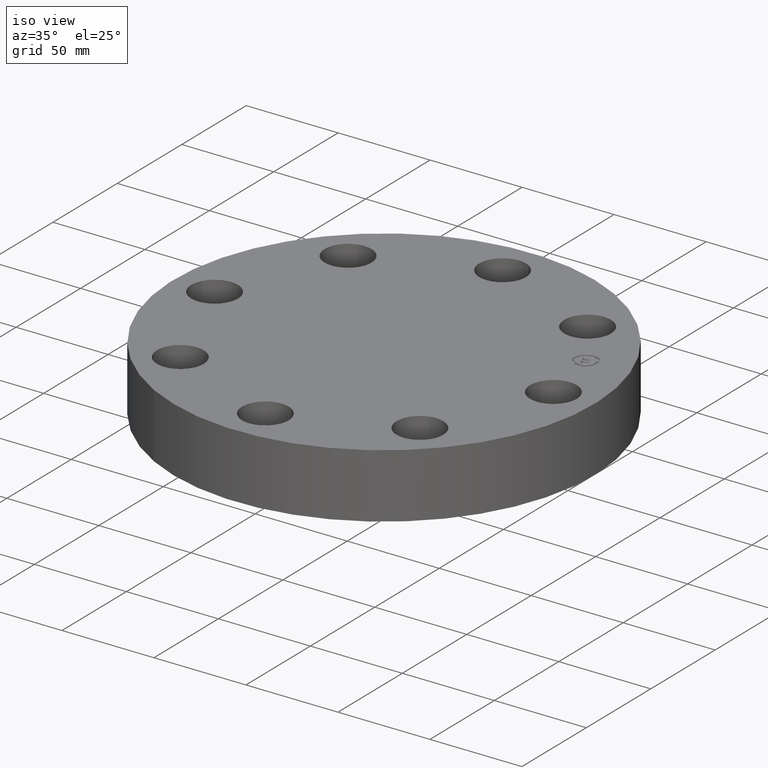
[diagram: clean part render]
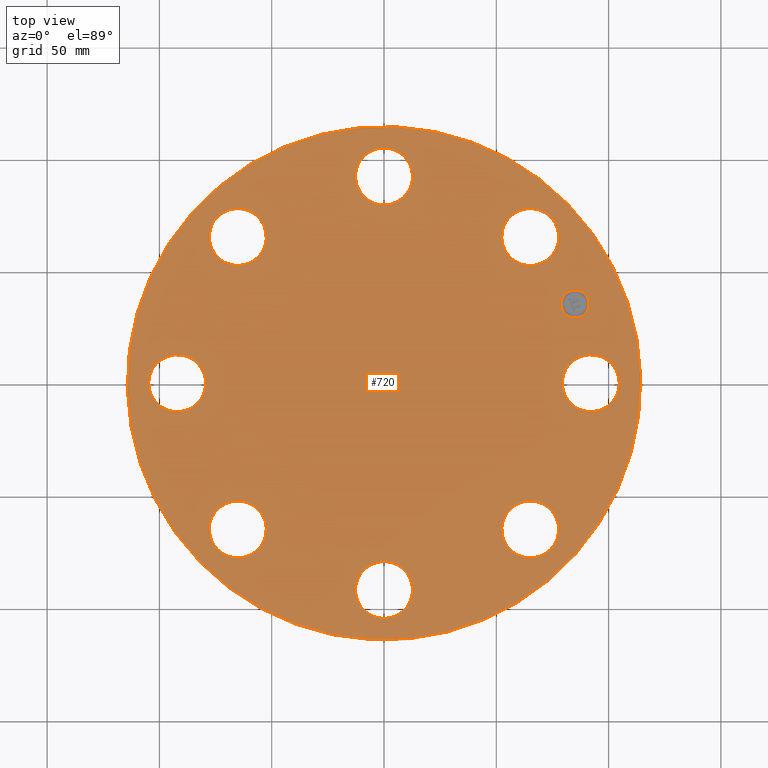
[diagram: tour spotlight — one face highlighted and labeled with its STEP entity id]
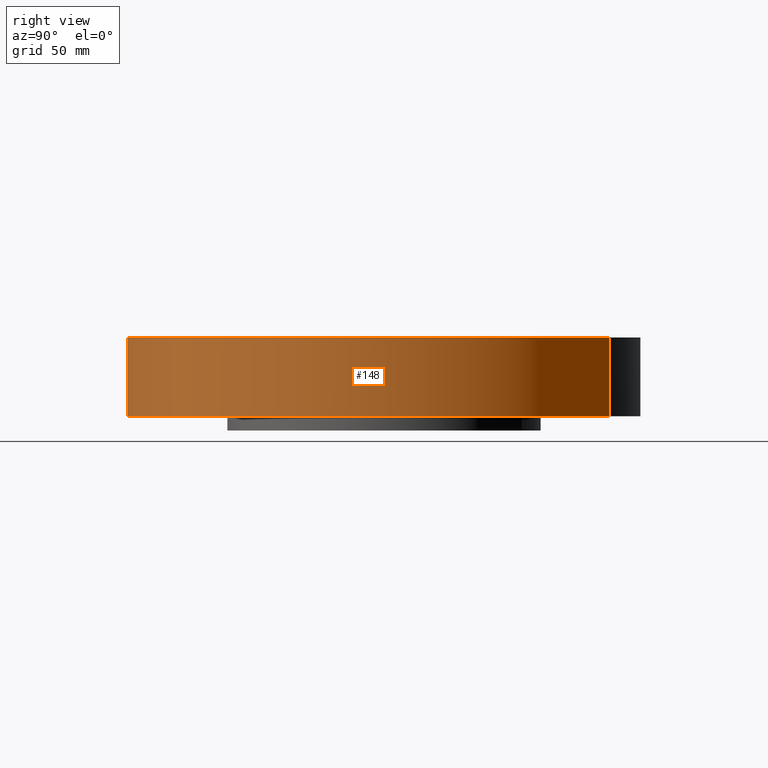
[diagram: tour spotlight — one face highlighted and labeled with its STEP entity id]
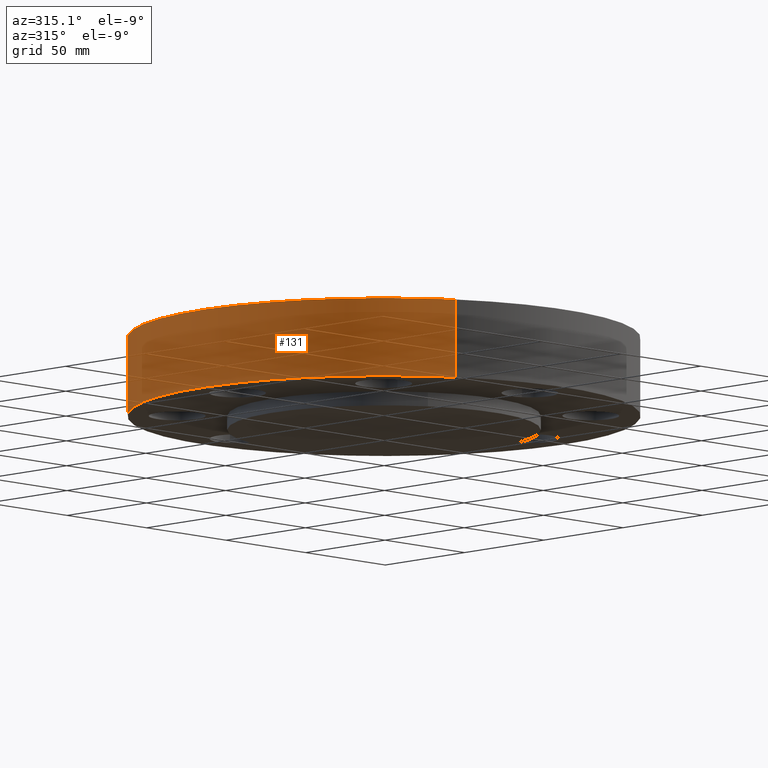
[diagram: tour spotlight — one face highlighted and labeled with its STEP entity id]
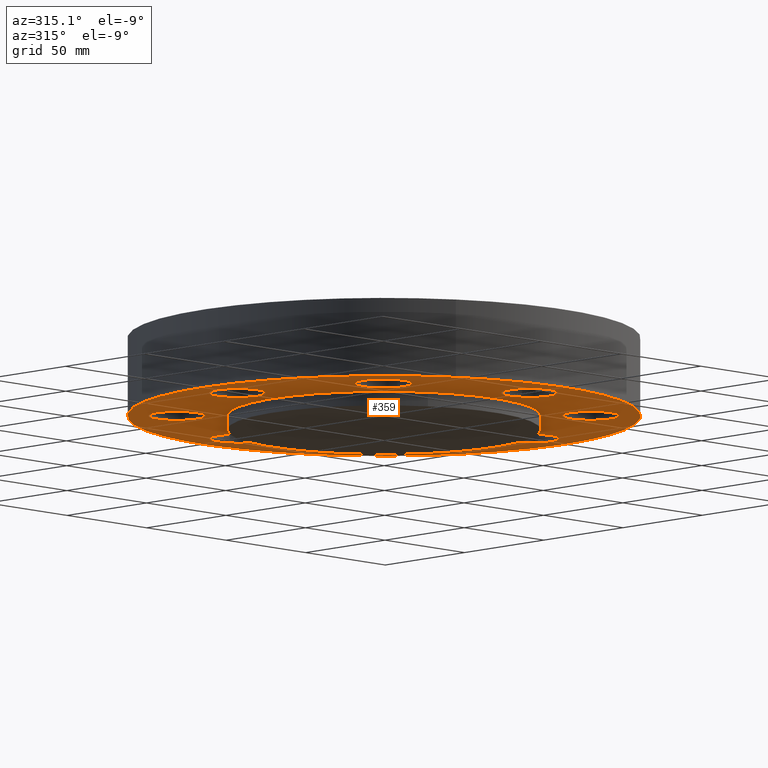
[diagram: tour spotlight — one face highlighted and labeled with its STEP entity id]
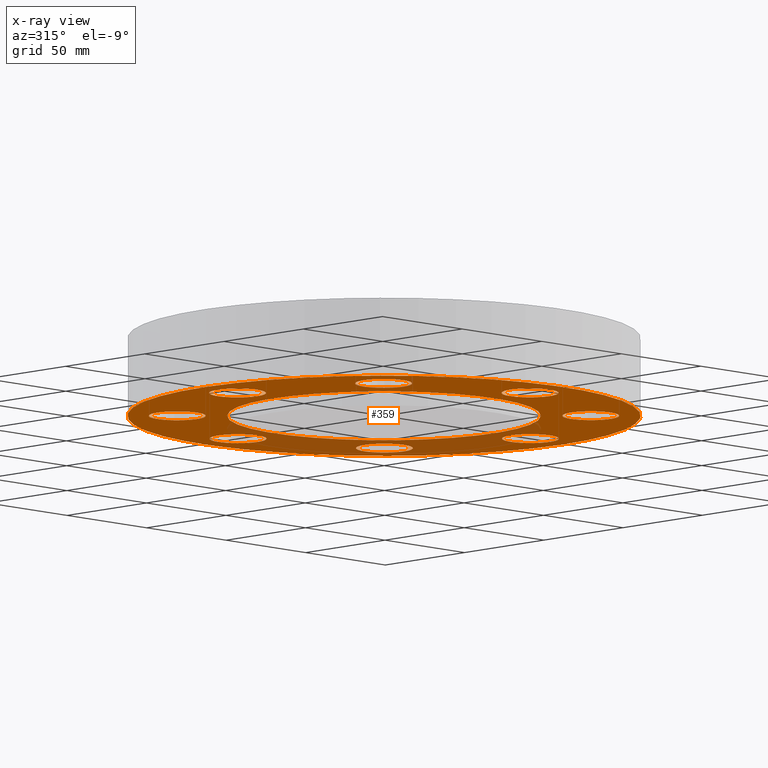
[diagram: x-ray of the same camera — body ghosted, this tour face saturated]
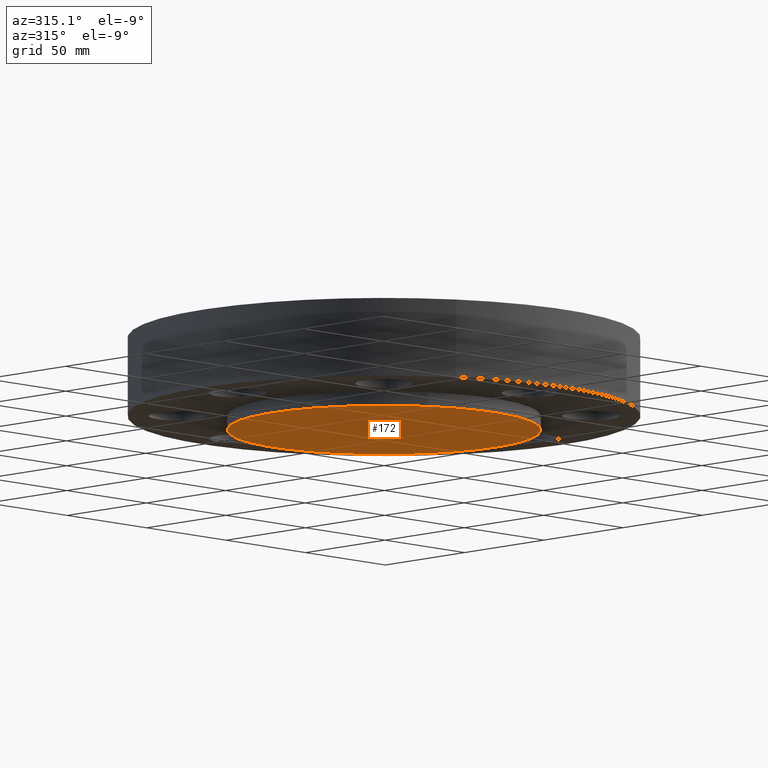
[diagram: tour spotlight — one face highlighted and labeled with its STEP entity id]
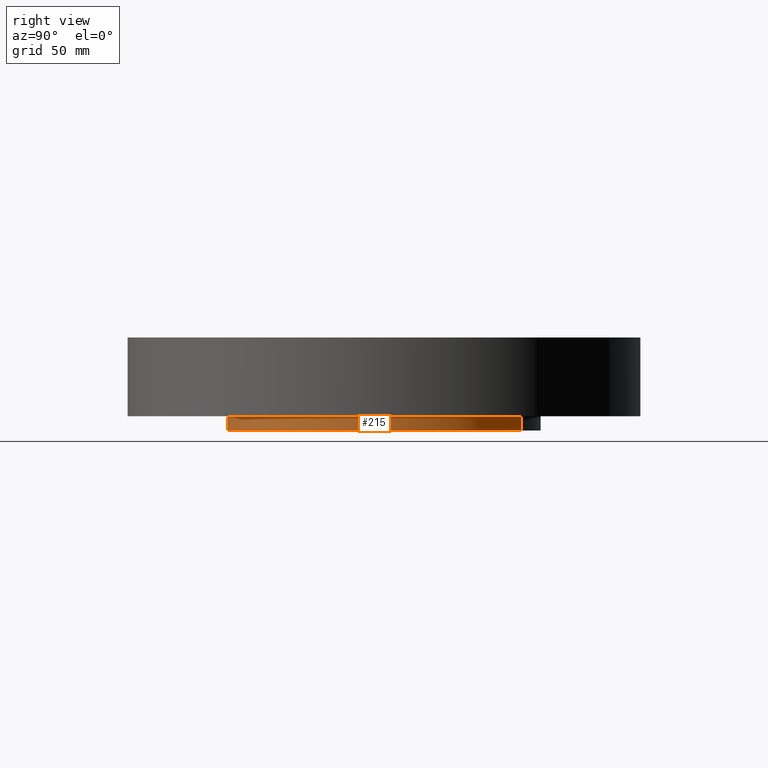
[diagram: tour spotlight — one face highlighted and labeled with its STEP entity id]
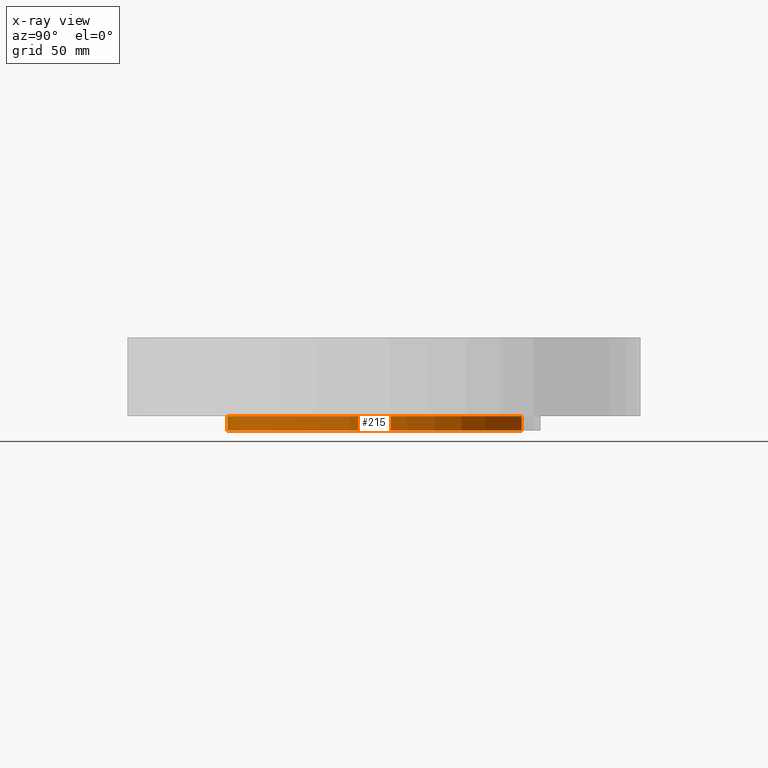
[diagram: x-ray of the same camera — body ghosted, this tour face saturated]
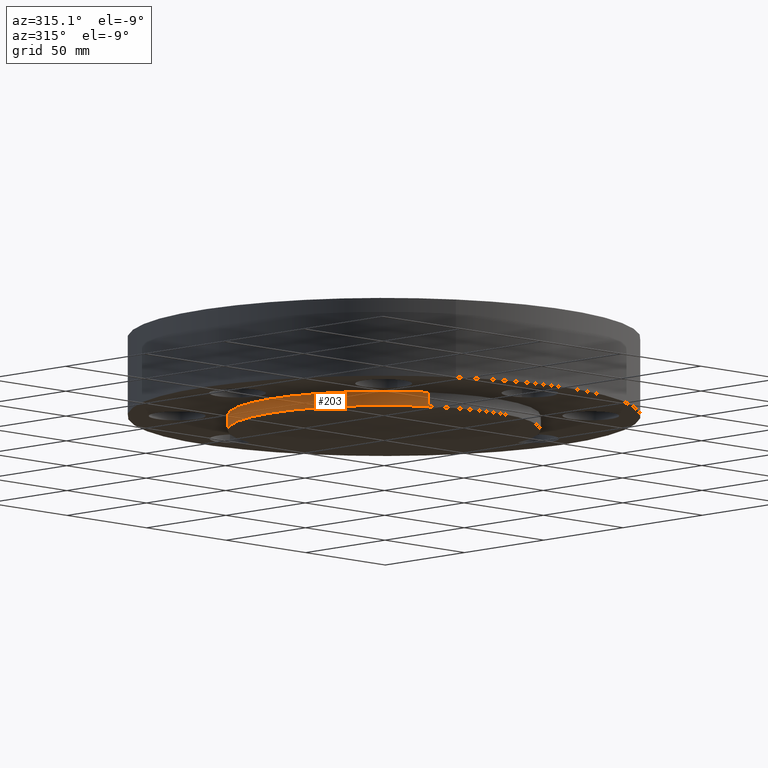
[diagram: tour spotlight — one face highlighted and labeled with its STEP entity id]
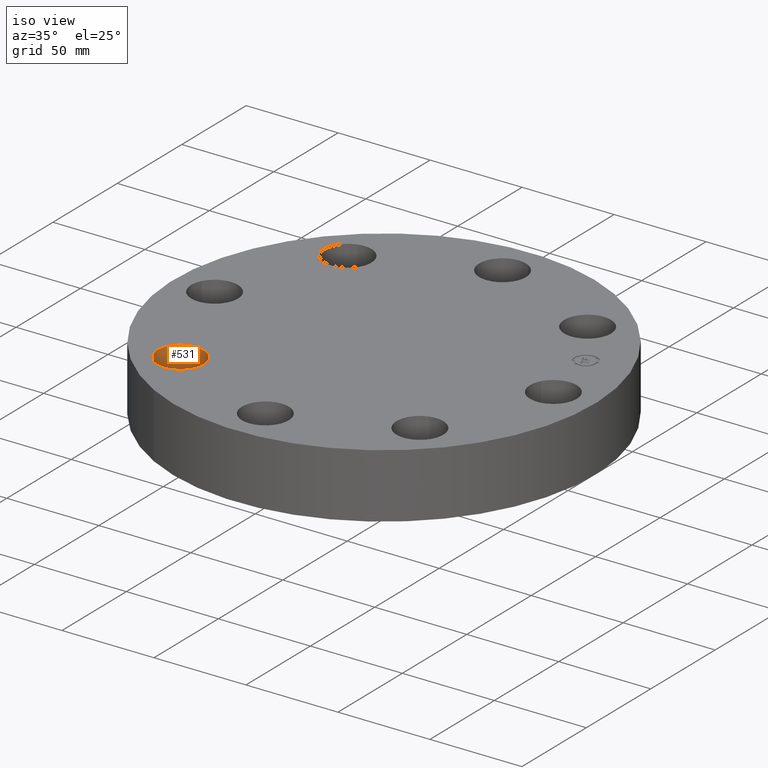
[diagram: tour spotlight — one face highlighted and labeled with its STEP entity id]
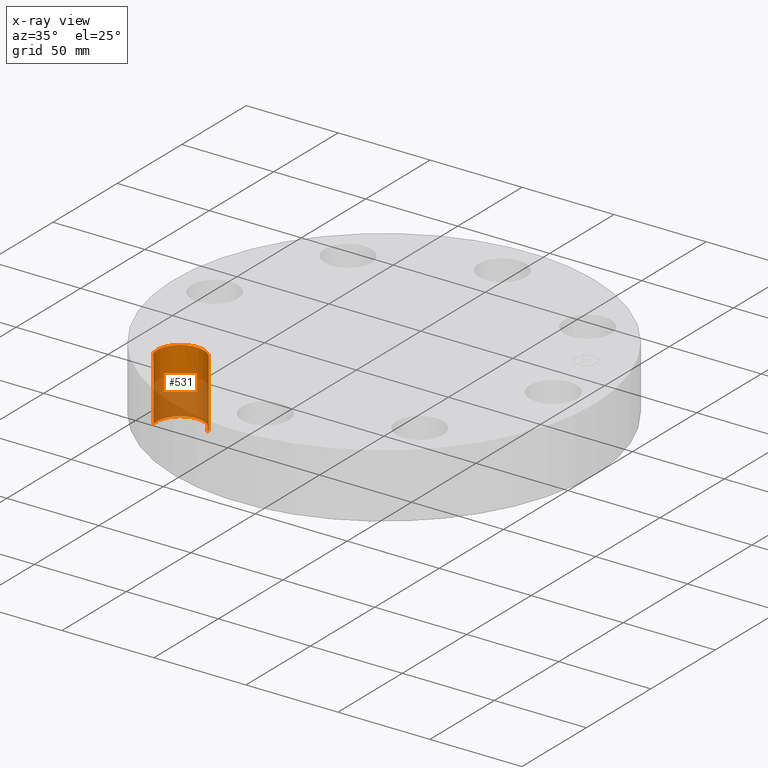
[diagram: x-ray of the same camera — body ghosted, this tour face saturated]
A machine part: a face-by-face anatomy tour. The part has 408 B-rep faces; the first image is the clean iso view, then the 8 largest visible faces are spotlighted one at a time (largest first), each with its STEP entity span.

Face 1 — top view, entity #720. In plain terms, the highlighted planar face has unit normal (0, 0, -1).
Definition (entity closure, byte-faithful):
#65=AXIS2_PLACEMENT_3D('Circle Axis2P3D',#63,#64,$) ;
#82=AXIS2_PLACEMENT_3D('Circle Axis2P3D',#80,#81,$) ;
#115=AXIS2_PLACEMENT_3D('Circle Axis2P3D',#113,#114,$) ;
#139=AXIS2_PLACEMENT_3D('Circle Axis2P3D',#137,#138,$) ;
#381=AXIS2_PLACEMENT_3D('Circle Axis2P3D',#379,#380,$) ;
#393=AXIS2_PLACEMENT_3D('Circle Axis2P3D',#391,#392,$) ;
#424=AXIS2_PLACEMENT_3D('Circle Axis2P3D',#422,#423,$) ;
#436=AXIS2_PLACEMENT_3D('Circle Axis2P3D',#434,#435,$) ;
#467=AXIS2_PLACEMENT_3D('Circle Axis2P3D',#465,#466,$) ;
#479=AXIS2_PLACEMENT_3D('Circle Axis2P3D',#477,#478,$) ;
#510=AXIS2_PLACEMENT_3D('Circle Axis2P3D',#508,#509,$) ;
#522=AXIS2_PLACEMENT_3D('Circle Axis2P3D',#520,#521,$) ;
#553=AXIS2_PLACEMENT_3D('Circle Axis2P3D',#551,#552,$) ;
#565=AXIS2_PLACEMENT_3D('Circle Axis2P3D',#563,#564,$) ;
#596=AXIS2_PLACEMENT_3D('Circle Axis2P3D',#594,#595,$) ;
#608=AXIS2_PLACEMENT_3D('Circle Axis2P3D',#606,#607,$) ;
#639=AXIS2_PLACEMENT_3D('Circle Axis2P3D',#637,#638,$) ;
#651=AXIS2_PLACEMENT_3D('Circle Axis2P3D',#649,#650,$) ;
#664=AXIS2_PLACEMENT_3D('Plane Axis2P3D',#661,#662,#663) ;
#704=AXIS2_PLACEMENT_3D('Circle Axis2P3D',#702,#703,$) ;
#713=AXIS2_PLACEMENT_3D('Circle Axis2P3D',#711,#712,$) ;
#46=CARTESIAN_POINT('Vertex',(3.18620871907,0.239712769303,1.38000000001)) ;
#60=CARTESIAN_POINT('Vertex',(4.06379128096,-0.239712769303,1.38000000001)) ;
#63=CARTESIAN_POINT('Axis2P3D Location',(3.62500000001,0.,1.38000000001)) ;
#80=CARTESIAN_POINT('Axis2P3D Location',(3.62500000001,0.,1.38000000001)) ;
#110=CARTESIAN_POINT('Vertex',(-2.15741492373,-3.94912152852,1.38000000001)) ;
#113=CARTESIAN_POINT('Axis2P3D Location',(0.,0.,1.38000000001)) ;
#117=CARTESIAN_POINT('Vertex',(2.15741492373,3.94912152852,1.38000000001)) ;
#137=CARTESIAN_POINT('Axis2P3D Location',(0.,0.,1.38000000001)) ;
#369=CARTESIAN_POINT('Vertex',(-2.42249231624,2.08348726682,1.38000000001)) ;
#376=CARTESIAN_POINT('Vertex',(-2.70403184738,3.04303689681,1.38000000001)) ;
#379=CARTESIAN_POINT('Axis2P3D Location',(-2.56326208181,2.56326208181,1.38000000001)) ;
#391=CARTESIAN_POINT('Axis2P3D Location',(-2.56326208181,2.56326208181,1.38000000001)) ;
#412=CARTESIAN_POINT('Vertex',(0.239712769303,-3.18620871907,1.38000000001)) ;
#419=CARTESIAN_POINT('Vertex',(-0.239712769303,-4.06379128096,1.38000000001)) ;
#422=CARTESIAN_POINT('Axis2P3D Location',(-3.37515236756E-016,-3.62500000001,1.38000000001)) ;
#434=CARTESIAN_POINT('Axis2P3D Location',(-3.37515236756E-016,-3.62500000001,1.38000000001)) ;
#455=CARTESIAN_POINT('Vertex',(-0.239712769303,3.18620871907,1.38000000001)) ;
#462=CARTESIAN_POINT('Vertex',(0.239712769303,4.06379128096,1.38000000001)) ;
#465=CARTESIAN_POINT('Axis2P3D Location',(-6.65901697039E-016,3.62500000001,1.38000000001)) ;
#477=CARTESIAN_POINT('Axis2P3D Location',(-6.65901697039E-016,3.62500000001,1.38000000001)) ;
#498=CARTESIAN_POINT('Vertex',(-2.08348726682,-2.42249231624,1.38000000001)) ;
#505=CARTESIAN_POINT('Vertex',(-3.04303689681,-2.70403184738,1.38000000001)) ;
#508=CARTESIAN_POINT('Axis2P3D Location',(-2.56326208181,-2.56326208181,1.38000000001)) ;
#520=CARTESIAN_POINT('Axis2P3D Location',(-2.56326208181,-2.56326208181,1.38000000001)) ;
#541=CARTESIAN_POINT('Vertex',(2.08348726682,2.42249231624,1.38000000001)) ;
#548=CARTESIAN_POINT('Vertex',(3.04303689681,2.70403184738,1.38000000001)) ;
#551=CARTESIAN_POINT('Axis2P3D Location',(2.56326208181,2.56326208181,1.38000000001)) ;
#563=CARTESIAN_POINT('Axis2P3D Location',(2.56326208181,2.56326208181,1.38000000001)) ;
#584=CARTESIAN_POINT('Vertex',(-3.18620871907,-0.239712769303,1.38000000001)) ;
#591=CARTESIAN_POINT('Vertex',(-4.06379128096,0.239712769303,1.38000000001)) ;
#594=CARTESIAN_POINT('Axis2P3D Location',(-3.62500000001,-4.43934464693E-016,1.38000000001)) ;
#606=CARTESIAN_POINT('Axis2P3D Location',(-3.62500000001,-4.43934464693E-016,1.38000000001)) ;
#627=CARTESIAN_POINT('Vertex',(2.42249231624,-2.08348726682,1.38000000001)) ;
#634=CARTESIAN_POINT('Vertex',(2.70403184738,-3.04303689681,1.38000000001)) ;
#637=CARTESIAN_POINT('Axis2P3D Location',(2.56326208181,-2.56326208181,1.38000000001)) ;
#649=CARTESIAN_POINT('Axis2P3D Location',(2.56326208181,-2.56326208181,1.38000000001)) ;
#661=CARTESIAN_POINT('Axis2P3D Location',(0.,4.50000000002,1.38000000001)) ;
#702=CARTESIAN_POINT('Axis2P3D Location',(3.34906330537,1.38722744233,1.38000000001)) ;
#706=CARTESIAN_POINT('Vertex',(3.25434915586,1.61588762663,1.38000000001)) ;
#708=CARTESIAN_POINT('Vertex',(3.44377745488,1.15856725803,1.38000000001)) ;
#711=CARTESIAN_POINT('Axis2P3D Location',(3.34906330537,1.38722744233,1.38000000001)) ;
#64=DIRECTION('Axis2P3D Direction',(0.,-0.,-0.0393700787402)) ;
#81=DIRECTION('Axis2P3D Direction',(0.,-0.,-0.0393700787402)) ;
#114=DIRECTION('Axis2P3D Direction',(0.,0.,-0.0393700787402)) ;
#138=DIRECTION('Axis2P3D Direction',(0.,0.,-0.0393700787402)) ;
#380=DIRECTION('Axis2P3D Direction',(0.,0.,-0.0393700787402)) ;
#392=DIRECTION('Axis2P3D Direction',(0.,0.,-0.0393700787402)) ;
#423=DIRECTION('Axis2P3D Direction',(0.,-0.,-0.0393700787402)) ;
#435=DIRECTION('Axis2P3D Direction',(0.,-0.,-0.0393700787402)) ;
#466=DIRECTION('Axis2P3D Direction',(0.,0.,-0.0393700787402)) ;
#478=DIRECTION('Axis2P3D Direction',(0.,0.,-0.0393700787402)) ;
#509=DIRECTION('Axis2P3D Direction',(-0.,0.,-0.0393700787402)) ;
#521=DIRECTION('Axis2P3D Direction',(-0.,0.,-0.0393700787402)) ;
#552=DIRECTION('Axis2P3D Direction',(0.,0.,-0.0393700787402)) ;
#564=DIRECTION('Axis2P3D Direction',(0.,0.,-0.0393700787402)) ;
#595=DIRECTION('Axis2P3D Direction',(-0.,0.,-0.0393700787402)) ;
#607=DIRECTION('Axis2P3D Direction',(-0.,0.,-0.0393700787402)) ;
#638=DIRECTION('Axis2P3D Direction',(0.,-0.,-0.0393700787402)) ;
#650=DIRECTION('Axis2P3D Direction',(0.,-0.,-0.0393700787402)) ;
#662=DIRECTION('Axis2P3D Direction',(0.,0.,-0.0393700787402)) ;
#663=DIRECTION('Axis2P3D XDirection',(0.0393700787402,0.,0.)) ;
#703=DIRECTION('Axis2P3D Direction',(0.,0.,-0.0393700787402)) ;
#712=DIRECTION('Axis2P3D Direction',(0.,0.,-0.0393700787402)) ;
#667=ORIENTED_EDGE('',*,*,#141,.F.) ;
#668=ORIENTED_EDGE('',*,*,#119,.F.) ;
#671=ORIENTED_EDGE('',*,*,#67,.T.) ;
#672=ORIENTED_EDGE('',*,*,#84,.T.) ;
#675=ORIENTED_EDGE('',*,*,#653,.T.) ;
#676=ORIENTED_EDGE('',*,*,#641,.T.) ;
#679=ORIENTED_EDGE('',*,*,#438,.T.) ;
#680=ORIENTED_EDGE('',*,*,#426,.T.) ;
#683=ORIENTED_EDGE('',*,*,#524,.T.) ;
#684=ORIENTED_EDGE('',*,*,#512,.T.) ;
#687=ORIENTED_EDGE('',*,*,#610,.T.) ;
#688=ORIENTED_EDGE('',*,*,#598,.T.) ;
#691=ORIENTED_EDGE('',*,*,#395,.T.) ;
#692=ORIENTED_EDGE('',*,*,#383,.T.) ;
#695=ORIENTED_EDGE('',*,*,#481,.T.) ;
#696=ORIENTED_EDGE('',*,*,#469,.T.) ;
#699=ORIENTED_EDGE('',*,*,#567,.T.) ;
#700=ORIENTED_EDGE('',*,*,#555,.T.) ;
#717=ORIENTED_EDGE('',*,*,#710,.T.) ;
#718=ORIENTED_EDGE('',*,*,#715,.T.) ;
#673=FACE_BOUND('',#670,.T.) ;
#677=FACE_BOUND('',#674,.T.) ;
#681=FACE_BOUND('',#678,.T.) ;
#685=FACE_BOUND('',#682,.T.) ;
#689=FACE_BOUND('',#686,.T.) ;
#693=FACE_BOUND('',#690,.T.) ;
#697=FACE_BOUND('',#694,.T.) ;
#701=FACE_BOUND('',#698,.T.) ;
#719=FACE_BOUND('',#716,.T.) ;
#720=ADVANCED_FACE('PartBody',(#669,#673,#677,#681,#685,#689,#693,#697,#701,#719),#665,.F.) ;
#66=CIRCLE('generated circle',#65,0.500000000002) ;
#83=CIRCLE('generated circle',#82,0.500000000002) ;
#116=CIRCLE('generated circle',#115,4.50000000002) ;
#140=CIRCLE('generated circle',#139,4.50000000002) ;
#382=CIRCLE('generated circle',#381,0.500000000002) ;
#394=CIRCLE('generated circle',#393,0.500000000002) ;
#425=CIRCLE('generated circle',#424,0.500000000002) ;
#437=CIRCLE('generated circle',#436,0.500000000002) ;
#468=CIRCLE('generated circle',#467,0.500000000002) ;
#480=CIRCLE('generated circle',#479,0.500000000002) ;
#511=CIRCLE('generated circle',#510,0.500000000002) ;
#523=CIRCLE('generated circle',#522,0.500000000002) ;
#554=CIRCLE('generated circle',#553,0.500000000002) ;
#566=CIRCLE('generated circle',#565,0.500000000002) ;
#597=CIRCLE('generated circle',#596,0.500000000002) ;
#609=CIRCLE('generated circle',#608,0.500000000002) ;
#640=CIRCLE('generated circle',#639,0.500000000002) ;
#652=CIRCLE('generated circle',#651,0.500000000002) ;
#705=CIRCLE('generated circle',#704,0.247500000001) ;
#714=CIRCLE('generated circle',#713,0.247500000001) ;
#67=EDGE_CURVE('',#47,#61,#66,.T.) ;
#84=EDGE_CURVE('',#61,#47,#83,.T.) ;
#119=EDGE_CURVE('',#111,#118,#116,.T.) ;
#141=EDGE_CURVE('',#118,#111,#140,.T.) ;
#383=EDGE_CURVE('',#370,#377,#382,.T.) ;
#395=EDGE_CURVE('',#377,#370,#394,.T.) ;
#426=EDGE_CURVE('',#413,#420,#425,.T.) ;
#438=EDGE_CURVE('',#420,#413,#437,.T.) ;
#469=EDGE_CURVE('',#456,#463,#468,.T.) ;
#481=EDGE_CURVE('',#463,#456,#480,.T.) ;
#512=EDGE_CURVE('',#499,#506,#511,.T.) ;
#524=EDGE_CURVE('',#506,#499,#523,.T.) ;
#555=EDGE_CURVE('',#542,#549,#554,.T.) ;
#567=EDGE_CURVE('',#549,#542,#566,.T.) ;
#598=EDGE_CURVE('',#585,#592,#597,.T.) ;
#610=EDGE_CURVE('',#592,#585,#609,.T.) ;
#641=EDGE_CURVE('',#628,#635,#640,.T.) ;
#653=EDGE_CURVE('',#635,#628,#652,.T.) ;
#710=EDGE_CURVE('',#707,#709,#705,.T.) ;
#715=EDGE_CURVE('',#709,#707,#714,.T.) ;
#666=EDGE_LOOP('',(#667,#668)) ;
#670=EDGE_LOOP('',(#671,#672)) ;
#674=EDGE_LOOP('',(#675,#676)) ;
#678=EDGE_LOOP('',(#679,#680)) ;
#682=EDGE_LOOP('',(#683,#684)) ;
#686=EDGE_LOOP('',(#687,#688)) ;
#690=EDGE_LOOP('',(#691,#692)) ;
#694=EDGE_LOOP('',(#695,#696)) ;
#698=EDGE_LOOP('',(#699,#700)) ;
#716=EDGE_LOOP('',(#717,#718)) ;
#669=FACE_OUTER_BOUND('',#666,.T.) ;
#665=PLANE('',#664) ;
#47=VERTEX_POINT('',#46) ;
#61=VERTEX_POINT('',#60) ;
#111=VERTEX_POINT('',#110) ;
#118=VERTEX_POINT('',#117) ;
#370=VERTEX_POINT('',#369) ;
#377=VERTEX_POINT('',#376) ;
#413=VERTEX_POINT('',#412) ;
#420=VERTEX_POINT('',#419) ;
#456=VERTEX_POINT('',#455) ;
#463=VERTEX_POINT('',#462) ;
#499=VERTEX_POINT('',#498) ;
#506=VERTEX_POINT('',#505) ;
#542=VERTEX_POINT('',#541) ;
#549=VERTEX_POINT('',#548) ;
#585=VERTEX_POINT('',#584) ;
#592=VERTEX_POINT('',#591) ;
#628=VERTEX_POINT('',#627) ;
#635=VERTEX_POINT('',#634) ;
#707=VERTEX_POINT('',#706) ;
#709=VERTEX_POINT('',#708) ;

Face 2 — right view, entity #148. In plain terms, the highlighted cylindrical surface (partial cylindrical patch) has radius 114.3 mm, axis along (0, 0, -1).
Definition (entity closure, byte-faithful):
#95=AXIS2_PLACEMENT_3D('Cylinder Axis2P3D',#92,#93,#94) ;
#134=AXIS2_PLACEMENT_3D('Circle Axis2P3D',#132,#133,$) ;
#139=AXIS2_PLACEMENT_3D('Circle Axis2P3D',#137,#138,$) ;
#92=CARTESIAN_POINT('Axis2P3D Location',(0.,0.,0.565000000002)) ;
#101=CARTESIAN_POINT('Vertex',(-2.15741492373,-3.94912152852,5.59482469102E-016)) ;
#103=CARTESIAN_POINT('Vertex',(2.15741492373,3.94912152852,5.59482469102E-016)) ;
#106=CARTESIAN_POINT('Line Origine',(-2.15741492373,-3.94912152852,0.690000000003)) ;
#110=CARTESIAN_POINT('Vertex',(-2.15741492373,-3.94912152852,1.38000000001)) ;
#117=CARTESIAN_POINT('Vertex',(2.15741492373,3.94912152852,1.38000000001)) ;
#120=CARTESIAN_POINT('Line Origine',(2.15741492373,3.94912152852,0.690000000003)) ;
#132=CARTESIAN_POINT('Axis2P3D Location',(0.,0.,5.59482469102E-016)) ;
#137=CARTESIAN_POINT('Axis2P3D Location',(0.,0.,1.38000000001)) ;
#93=DIRECTION('Axis2P3D Direction',(0.,0.,-0.0393700787402)) ;
#94=DIRECTION('Axis2P3D XDirection',(0.0188750212049,0.0345504945626,0.)) ;
#107=DIRECTION('Vector Direction',(0.,0.,-0.0393700787402)) ;
#121=DIRECTION('Vector Direction',(0.,0.,-0.0393700787402)) ;
#133=DIRECTION('Axis2P3D Direction',(0.,0.,-0.0393700787402)) ;
#138=DIRECTION('Axis2P3D Direction',(0.,0.,-0.0393700787402)) ;
#108=VECTOR('Line Direction',#107,0.0393700787402) ;
#122=VECTOR('Line Direction',#121,0.0393700787402) ;
#143=ORIENTED_EDGE('',*,*,#136,.F.) ;
#144=ORIENTED_EDGE('',*,*,#124,.T.) ;
#145=ORIENTED_EDGE('',*,*,#141,.T.) ;
#146=ORIENTED_EDGE('',*,*,#112,.F.) ;
#148=ADVANCED_FACE('PartBody',(#147),#96,.T.) ;
#135=CIRCLE('generated circle',#134,4.50000000002) ;
#140=CIRCLE('generated circle',#139,4.50000000002) ;
#96=CYLINDRICAL_SURFACE('generated cylinder',#95,4.50000000002) ;
#112=EDGE_CURVE('',#102,#111,#109,.F.) ;
#124=EDGE_CURVE('',#104,#118,#123,.F.) ;
#136=EDGE_CURVE('',#104,#102,#135,.T.) ;
#141=EDGE_CURVE('',#118,#111,#140,.T.) ;
#142=EDGE_LOOP('',(#143,#144,#145,#146)) ;
#147=FACE_OUTER_BOUND('',#142,.T.) ;
#109=LINE('Line',#106,#108) ;
#123=LINE('Line',#120,#122) ;
#102=VERTEX_POINT('',#101) ;
#104=VERTEX_POINT('',#103) ;
#111=VERTEX_POINT('',#110) ;
#118=VERTEX_POINT('',#117) ;

Face 3 — auxiliary view, entity #131. In plain terms, the highlighted cylindrical surface (partial cylindrical patch) has radius 114.3 mm, axis along (0, 0, -1).
Definition (entity closure, byte-faithful):
#95=AXIS2_PLACEMENT_3D('Cylinder Axis2P3D',#92,#93,#94) ;
#99=AXIS2_PLACEMENT_3D('Circle Axis2P3D',#97,#98,$) ;
#115=AXIS2_PLACEMENT_3D('Circle Axis2P3D',#113,#114,$) ;
#92=CARTESIAN_POINT('Axis2P3D Location',(0.,0.,0.565000000002)) ;
#97=CARTESIAN_POINT('Axis2P3D Location',(0.,0.,5.59482469102E-016)) ;
#101=CARTESIAN_POINT('Vertex',(-2.15741492373,-3.94912152852,5.59482469102E-016)) ;
#103=CARTESIAN_POINT('Vertex',(2.15741492373,3.94912152852,5.59482469102E-016)) ;
#106=CARTESIAN_POINT('Line Origine',(-2.15741492373,-3.94912152852,0.690000000003)) ;
#110=CARTESIAN_POINT('Vertex',(-2.15741492373,-3.94912152852,1.38000000001)) ;
#113=CARTESIAN_POINT('Axis2P3D Location',(0.,0.,1.38000000001)) ;
#117=CARTESIAN_POINT('Vertex',(2.15741492373,3.94912152852,1.38000000001)) ;
#120=CARTESIAN_POINT('Line Origine',(2.15741492373,3.94912152852,0.690000000003)) ;
#93=DIRECTION('Axis2P3D Direction',(0.,0.,-0.0393700787402)) ;
#94=DIRECTION('Axis2P3D XDirection',(0.0188750212049,0.0345504945626,0.)) ;
#98=DIRECTION('Axis2P3D Direction',(0.,0.,-0.0393700787402)) ;
#107=DIRECTION('Vector Direction',(0.,0.,-0.0393700787402)) ;
#114=DIRECTION('Axis2P3D Direction',(0.,0.,-0.0393700787402)) ;
#121=DIRECTION('Vector Direction',(0.,0.,-0.0393700787402)) ;
#108=VECTOR('Line Direction',#107,0.0393700787402) ;
#122=VECTOR('Line Direction',#121,0.0393700787402) ;
#126=ORIENTED_EDGE('',*,*,#105,.F.) ;
#127=ORIENTED_EDGE('',*,*,#112,.T.) ;
#128=ORIENTED_EDGE('',*,*,#119,.T.) ;
#129=ORIENTED_EDGE('',*,*,#124,.F.) ;
#131=ADVANCED_FACE('PartBody',(#130),#96,.T.) ;
#100=CIRCLE('generated circle',#99,4.50000000002) ;
#116=CIRCLE('generated circle',#115,4.50000000002) ;
#96=CYLINDRICAL_SURFACE('generated cylinder',#95,4.50000000002) ;
#105=EDGE_CURVE('',#102,#104,#100,.T.) ;
#112=EDGE_CURVE('',#102,#111,#109,.F.) ;
#119=EDGE_CURVE('',#111,#118,#116,.T.) ;
#124=EDGE_CURVE('',#104,#118,#123,.F.) ;
#125=EDGE_LOOP('',(#126,#127,#128,#129)) ;
#130=FACE_OUTER_BOUND('',#125,.T.) ;
#109=LINE('Line',#106,#108) ;
#123=LINE('Line',#120,#122) ;
#102=VERTEX_POINT('',#101) ;
#104=VERTEX_POINT('',#103) ;
#111=VERTEX_POINT('',#110) ;
#118=VERTEX_POINT('',#117) ;

Face 4 — auxiliary view, entity #359. An x-ray twin of the same camera follows (body ghosted, this face saturated) — the face is partly hidden behind the body. In plain terms, the highlighted planar face has unit normal (0, 0, -1).
Definition (entity closure, byte-faithful):
#51=AXIS2_PLACEMENT_3D('Circle Axis2P3D',#49,#50,$) ;
#77=AXIS2_PLACEMENT_3D('Circle Axis2P3D',#75,#76,$) ;
#99=AXIS2_PLACEMENT_3D('Circle Axis2P3D',#97,#98,$) ;
#134=AXIS2_PLACEMENT_3D('Circle Axis2P3D',#132,#133,$) ;
#187=AXIS2_PLACEMENT_3D('Circle Axis2P3D',#185,#186,$) ;
#206=AXIS2_PLACEMENT_3D('Circle Axis2P3D',#204,#205,$) ;
#219=AXIS2_PLACEMENT_3D('Plane Axis2P3D',#216,#217,#218) ;
#235=AXIS2_PLACEMENT_3D('Circle Axis2P3D',#233,#234,$) ;
#244=AXIS2_PLACEMENT_3D('Circle Axis2P3D',#242,#243,$) ;
#253=AXIS2_PLACEMENT_3D('Circle Axis2P3D',#251,#252,$) ;
#262=AXIS2_PLACEMENT_3D('Circle Axis2P3D',#260,#261,$) ;
#271=AXIS2_PLACEMENT_3D('Circle Axis2P3D',#269,#270,$) ;
#280=AXIS2_PLACEMENT_3D('Circle Axis2P3D',#278,#279,$) ;
#289=AXIS2_PLACEMENT_3D('Circle Axis2P3D',#287,#288,$) ;
#298=AXIS2_PLACEMENT_3D('Circle Axis2P3D',#296,#297,$) ;
#307=AXIS2_PLACEMENT_3D('Circle Axis2P3D',#305,#306,$) ;
#316=AXIS2_PLACEMENT_3D('Circle Axis2P3D',#314,#315,$) ;
#325=AXIS2_PLACEMENT_3D('Circle Axis2P3D',#323,#324,$) ;
#334=AXIS2_PLACEMENT_3D('Circle Axis2P3D',#332,#333,$) ;
#343=AXIS2_PLACEMENT_3D('Circle Axis2P3D',#341,#342,$) ;
#352=AXIS2_PLACEMENT_3D('Circle Axis2P3D',#350,#351,$) ;
#44=CARTESIAN_POINT('Vertex',(3.18620871907,0.239712769303,0.)) ;
#49=CARTESIAN_POINT('Axis2P3D Location',(3.62500000001,0.,0.)) ;
#53=CARTESIAN_POINT('Vertex',(4.06379128096,-0.239712769303,0.)) ;
#75=CARTESIAN_POINT('Axis2P3D Location',(3.62500000001,0.,0.)) ;
#97=CARTESIAN_POINT('Axis2P3D Location',(0.,0.,5.59482469102E-016)) ;
#101=CARTESIAN_POINT('Vertex',(-2.15741492373,-3.94912152852,5.59482469102E-016)) ;
#103=CARTESIAN_POINT('Vertex',(2.15741492373,3.94912152852,5.59482469102E-016)) ;
#132=CARTESIAN_POINT('Axis2P3D Location',(0.,0.,5.59482469102E-016)) ;
#182=CARTESIAN_POINT('Vertex',(-1.31842023117,-2.41335204521,4.89547160465E-016)) ;
#185=CARTESIAN_POINT('Axis2P3D Location',(0.,0.,4.19611851827E-016)) ;
#189=CARTESIAN_POINT('Vertex',(1.31842023117,2.41335204521,4.89547160465E-016)) ;
#204=CARTESIAN_POINT('Axis2P3D Location',(0.,0.,4.19611851827E-016)) ;
#216=CARTESIAN_POINT('Axis2P3D Location',(0.,2.75000000001,0.)) ;
#233=CARTESIAN_POINT('Axis2P3D Location',(2.56326208181,-2.56326208181,0.)) ;
#237=CARTESIAN_POINT('Vertex',(2.42249231624,-2.08348726682,0.)) ;
#239=CARTESIAN_POINT('Vertex',(2.70403184738,-3.04303689681,0.)) ;
#242=CARTESIAN_POINT('Axis2P3D Location',(2.56326208181,-2.56326208181,0.)) ;
#251=CARTESIAN_POINT('Axis2P3D Location',(-2.09805925913E-016,-3.62500000001,0.)) ;
#255=CARTESIAN_POINT('Vertex',(0.239712769303,-3.18620871907,0.)) ;
#257=CARTESIAN_POINT('Vertex',(-0.239712769303,-4.06379128096,0.)) ;
#260=CARTESIAN_POINT('Axis2P3D Location',(-8.39223703654E-016,-3.62500000001,0.)) ;
#269=CARTESIAN_POINT('Axis2P3D Location',(-2.56326208181,-2.56326208181,0.)) ;
#273=CARTESIAN_POINT('Vertex',(-2.08348726682,-2.42249231624,0.)) ;
#275=CARTESIAN_POINT('Vertex',(-3.04303689681,-2.70403184738,0.)) ;
#278=CARTESIAN_POINT('Axis2P3D Location',(-2.56326208181,-2.56326208181,0.)) ;
#287=CARTESIAN_POINT('Axis2P3D Location',(-3.62500000001,0.,0.)) ;
#291=CARTESIAN_POINT('Vertex',(-3.18620871907,-0.239712769303,0.)) ;
#293=CARTESIAN_POINT('Vertex',(-4.06379128096,0.239712769303,0.)) ;
#296=CARTESIAN_POINT('Axis2P3D Location',(-3.62500000001,0.,0.)) ;
#305=CARTESIAN_POINT('Axis2P3D Location',(-2.56326208181,2.56326208181,0.)) ;
#309=CARTESIAN_POINT('Vertex',(-2.42249231624,2.08348726682,0.)) ;
#311=CARTESIAN_POINT('Vertex',(-2.70403184738,3.04303689681,0.)) ;
#314=CARTESIAN_POINT('Axis2P3D Location',(-2.56326208181,2.56326208181,0.)) ;
#323=CARTESIAN_POINT('Axis2P3D Location',(-6.2941777774E-016,3.62500000001,0.)) ;
#327=CARTESIAN_POINT('Vertex',(-0.239712769303,3.18620871907,0.)) ;
#329=CARTESIAN_POINT('Vertex',(0.239712769303,4.06379128096,0.)) ;
#332=CARTESIAN_POINT('Axis2P3D Location',(-5.59482469102E-016,3.62500000001,0.)) ;
#341=CARTESIAN_POINT('Axis2P3D Location',(2.56326208181,2.56326208181,0.)) ;
#345=CARTESIAN_POINT('Vertex',(2.08348726682,2.42249231624,0.)) ;
#347=CARTESIAN_POINT('Vertex',(3.04303689681,2.70403184738,0.)) ;
#350=CARTESIAN_POINT('Axis2P3D Location',(2.56326208181,2.56326208181,0.)) ;
#50=DIRECTION('Axis2P3D Direction',(0.,-0.,-0.0393700787402)) ;
#76=DIRECTION('Axis2P3D Direction',(0.,-0.,-0.0393700787402)) ;
#98=DIRECTION('Axis2P3D Direction',(0.,0.,-0.0393700787402)) ;
#133=DIRECTION('Axis2P3D Direction',(0.,0.,-0.0393700787402)) ;
#186=DIRECTION('Axis2P3D Direction',(0.,0.,-0.0393700787402)) ;
#205=DIRECTION('Axis2P3D Direction',(0.,0.,-0.0393700787402)) ;
#217=DIRECTION('Axis2P3D Direction',(0.,0.,-0.0393700787402)) ;
#218=DIRECTION('Axis2P3D XDirection',(0.0393700787402,0.,0.)) ;
#234=DIRECTION('Axis2P3D Direction',(0.,0.,-0.0393700787402)) ;
#243=DIRECTION('Axis2P3D Direction',(0.,0.,-0.0393700787402)) ;
#252=DIRECTION('Axis2P3D Direction',(0.,0.,-0.0393700787402)) ;
#261=DIRECTION('Axis2P3D Direction',(0.,0.,-0.0393700787402)) ;
#270=DIRECTION('Axis2P3D Direction',(0.,0.,-0.0393700787402)) ;
#279=DIRECTION('Axis2P3D Direction',(0.,0.,-0.0393700787402)) ;
#288=DIRECTION('Axis2P3D Direction',(0.,0.,-0.0393700787402)) ;
#297=DIRECTION('Axis2P3D Direction',(0.,0.,-0.0393700787402)) ;
#306=DIRECTION('Axis2P3D Direction',(0.,0.,-0.0393700787402)) ;
#315=DIRECTION('Axis2P3D Direction',(0.,0.,-0.0393700787402)) ;
#324=DIRECTION('Axis2P3D Direction',(0.,0.,-0.0393700787402)) ;
#333=DIRECTION('Axis2P3D Direction',(0.,0.,-0.0393700787402)) ;
#342=DIRECTION('Axis2P3D Direction',(0.,0.,-0.0393700787402)) ;
#351=DIRECTION('Axis2P3D Direction',(0.,0.,-0.0393700787402)) ;
#222=ORIENTED_EDGE('',*,*,#105,.T.) ;
#223=ORIENTED_EDGE('',*,*,#136,.T.) ;
#226=ORIENTED_EDGE('',*,*,#79,.F.) ;
#227=ORIENTED_EDGE('',*,*,#55,.F.) ;
#230=ORIENTED_EDGE('',*,*,#208,.F.) ;
#231=ORIENTED_EDGE('',*,*,#191,.F.) ;
#248=ORIENTED_EDGE('',*,*,#241,.F.) ;
#249=ORIENTED_EDGE('',*,*,#246,.F.) ;
#266=ORIENTED_EDGE('',*,*,#259,.F.) ;
#267=ORIENTED_EDGE('',*,*,#264,.F.) ;
#284=ORIENTED_EDGE('',*,*,#277,.F.) ;
#285=ORIENTED_EDGE('',*,*,#282,.F.) ;
#302=ORIENTED_EDGE('',*,*,#295,.F.) ;
#303=ORIENTED_EDGE('',*,*,#300,.F.) ;
#320=ORIENTED_EDGE('',*,*,#313,.F.) ;
#321=ORIENTED_EDGE('',*,*,#318,.F.) ;
#338=ORIENTED_EDGE('',*,*,#331,.F.) ;
#339=ORIENTED_EDGE('',*,*,#336,.F.) ;
#356=ORIENTED_EDGE('',*,*,#349,.F.) ;
#357=ORIENTED_EDGE('',*,*,#354,.F.) ;
#228=FACE_BOUND('',#225,.T.) ;
#232=FACE_BOUND('',#229,.T.) ;
#250=FACE_BOUND('',#247,.T.) ;
#268=FACE_BOUND('',#265,.T.) ;
#286=FACE_BOUND('',#283,.T.) ;
#304=FACE_BOUND('',#301,.T.) ;
#322=FACE_BOUND('',#319,.T.) ;
#340=FACE_BOUND('',#337,.T.) ;
#358=FACE_BOUND('',#355,.T.) ;
#359=ADVANCED_FACE('PartBody',(#224,#228,#232,#250,#268,#286,#304,#322,#340,#358),#220,.T.) ;
#52=CIRCLE('generated circle',#51,0.500000000002) ;
#78=CIRCLE('generated circle',#77,0.500000000002) ;
#100=CIRCLE('generated circle',#99,4.50000000002) ;
#135=CIRCLE('generated circle',#134,4.50000000002) ;
#188=CIRCLE('generated circle',#187,2.75000000001) ;
#207=CIRCLE('generated circle',#206,2.75000000001) ;
#236=CIRCLE('generated circle',#235,0.500000000002) ;
#245=CIRCLE('generated circle',#244,0.500000000002) ;
#254=CIRCLE('generated circle',#253,0.500000000002) ;
#263=CIRCLE('generated circle',#262,0.500000000002) ;
#272=CIRCLE('generated circle',#271,0.500000000002) ;
#281=CIRCLE('generated circle',#280,0.500000000002) ;
#290=CIRCLE('generated circle',#289,0.500000000002) ;
#299=CIRCLE('generated circle',#298,0.500000000002) ;
#308=CIRCLE('generated circle',#307,0.500000000002) ;
#317=CIRCLE('generated circle',#316,0.500000000002) ;
#326=CIRCLE('generated circle',#325,0.500000000002) ;
#335=CIRCLE('generated circle',#334,0.500000000002) ;
#344=CIRCLE('generated circle',#343,0.500000000002) ;
#353=CIRCLE('generated circle',#352,0.500000000002) ;
#55=EDGE_CURVE('',#45,#54,#52,.T.) ;
#79=EDGE_CURVE('',#54,#45,#78,.T.) ;
#105=EDGE_CURVE('',#102,#104,#100,.T.) ;
#136=EDGE_CURVE('',#104,#102,#135,.T.) ;
#191=EDGE_CURVE('',#183,#190,#188,.T.) ;
#208=EDGE_CURVE('',#190,#183,#207,.T.) ;
#241=EDGE_CURVE('',#238,#240,#236,.T.) ;
#246=EDGE_CURVE('',#240,#238,#245,.T.) ;
#259=EDGE_CURVE('',#256,#258,#254,.T.) ;
#264=EDGE_CURVE('',#258,#256,#263,.T.) ;
#277=EDGE_CURVE('',#274,#276,#272,.T.) ;
#282=EDGE_CURVE('',#276,#274,#281,.T.) ;
#295=EDGE_CURVE('',#292,#294,#290,.T.) ;
#300=EDGE_CURVE('',#294,#292,#299,.T.) ;
#313=EDGE_CURVE('',#310,#312,#308,.T.) ;
#318=EDGE_CURVE('',#312,#310,#317,.T.) ;
#331=EDGE_CURVE('',#328,#330,#326,.T.) ;
#336=EDGE_CURVE('',#330,#328,#335,.T.) ;
#349=EDGE_CURVE('',#346,#348,#344,.T.) ;
#354=EDGE_CURVE('',#348,#346,#353,.T.) ;
#221=EDGE_LOOP('',(#222,#223)) ;
#225=EDGE_LOOP('',(#226,#227)) ;
#229=EDGE_LOOP('',(#230,#231)) ;
#247=EDGE_LOOP('',(#248,#249)) ;
#265=EDGE_LOOP('',(#266,#267)) ;
#283=EDGE_LOOP('',(#284,#285)) ;
#301=EDGE_LOOP('',(#302,#303)) ;
#319=EDGE_LOOP('',(#320,#321)) ;
#337=EDGE_LOOP('',(#338,#339)) ;
#355=EDGE_LOOP('',(#356,#357)) ;
#224=FACE_OUTER_BOUND('',#221,.T.) ;
#220=PLANE('',#219) ;
#45=VERTEX_POINT('',#44) ;
#54=VERTEX_POINT('',#53) ;
#102=VERTEX_POINT('',#101) ;
#104=VERTEX_POINT('',#103) ;
#183=VERTEX_POINT('',#182) ;
#190=VERTEX_POINT('',#189) ;
#238=VERTEX_POINT('',#237) ;
#240=VERTEX_POINT('',#239) ;
#256=VERTEX_POINT('',#255) ;
#258=VERTEX_POINT('',#257) ;
#274=VERTEX_POINT('',#273) ;
#276=VERTEX_POINT('',#275) ;
#292=VERTEX_POINT('',#291) ;
#294=VERTEX_POINT('',#293) ;
#310=VERTEX_POINT('',#309) ;
#312=VERTEX_POINT('',#311) ;
#328=VERTEX_POINT('',#327) ;
#330=VERTEX_POINT('',#329) ;
#346=VERTEX_POINT('',#345) ;
#348=VERTEX_POINT('',#347) ;

Face 5 — auxiliary view, entity #172. In plain terms, the highlighted planar face has unit normal (0, 0, -1).
Definition (entity closure, byte-faithful):
#152=AXIS2_PLACEMENT_3D('Plane Axis2P3D',#149,#150,#151) ;
#156=AXIS2_PLACEMENT_3D('Circle Axis2P3D',#154,#155,$) ;
#165=AXIS2_PLACEMENT_3D('Circle Axis2P3D',#163,#164,$) ;
#149=CARTESIAN_POINT('Axis2P3D Location',(0.,0.,-0.250000000001)) ;
#154=CARTESIAN_POINT('Axis2P3D Location',(0.,0.,-0.250000000001)) ;
#158=CARTESIAN_POINT('Vertex',(1.31842023117,2.41335204521,-0.250000000001)) ;
#160=CARTESIAN_POINT('Vertex',(-1.31842023117,-2.41335204521,-0.250000000001)) ;
#163=CARTESIAN_POINT('Axis2P3D Location',(0.,0.,-0.250000000001)) ;
#150=DIRECTION('Axis2P3D Direction',(0.,0.,-0.0393700787402)) ;
#151=DIRECTION('Axis2P3D XDirection',(0.0393700787402,0.,0.)) ;
#155=DIRECTION('Axis2P3D Direction',(0.,0.,-0.0393700787402)) ;
#164=DIRECTION('Axis2P3D Direction',(0.,0.,-0.0393700787402)) ;
#169=ORIENTED_EDGE('',*,*,#162,.T.) ;
#170=ORIENTED_EDGE('',*,*,#167,.T.) ;
#172=ADVANCED_FACE('PartBody',(#171),#153,.T.) ;
#157=CIRCLE('generated circle',#156,2.75000000001) ;
#166=CIRCLE('generated circle',#165,2.75000000001) ;
#162=EDGE_CURVE('',#159,#161,#157,.T.) ;
#167=EDGE_CURVE('',#161,#159,#166,.T.) ;
#168=EDGE_LOOP('',(#169,#170)) ;
#171=FACE_OUTER_BOUND('',#168,.T.) ;
#153=PLANE('',#152) ;
#159=VERTEX_POINT('',#158) ;
#161=VERTEX_POINT('',#160) ;

Face 6 — right view, entity #215. An x-ray twin of the same camera follows (body ghosted, this face saturated) — the face is partly hidden behind the body. In plain terms, the highlighted cylindrical surface (partial cylindrical patch) has radius 69.85 mm, axis along (0, 0, -1).
Definition (entity closure, byte-faithful):
#156=AXIS2_PLACEMENT_3D('Circle Axis2P3D',#154,#155,$) ;
#176=AXIS2_PLACEMENT_3D('Cylinder Axis2P3D',#173,#174,#175) ;
#206=AXIS2_PLACEMENT_3D('Circle Axis2P3D',#204,#205,$) ;
#154=CARTESIAN_POINT('Axis2P3D Location',(0.,0.,-0.250000000001)) ;
#158=CARTESIAN_POINT('Vertex',(1.31842023117,2.41335204521,-0.250000000001)) ;
#160=CARTESIAN_POINT('Vertex',(-1.31842023117,-2.41335204521,-0.250000000001)) ;
#173=CARTESIAN_POINT('Axis2P3D Location',(0.,0.,0.565000000002)) ;
#178=CARTESIAN_POINT('Line Origine',(-1.31842023117,-2.41335204521,-0.125000000001)) ;
#182=CARTESIAN_POINT('Vertex',(-1.31842023117,-2.41335204521,4.89547160465E-016)) ;
#189=CARTESIAN_POINT('Vertex',(1.31842023117,2.41335204521,4.89547160465E-016)) ;
#192=CARTESIAN_POINT('Line Origine',(1.31842023117,2.41335204521,-0.125000000001)) ;
#204=CARTESIAN_POINT('Axis2P3D Location',(0.,0.,4.19611851827E-016)) ;
#155=DIRECTION('Axis2P3D Direction',(0.,0.,-0.0393700787402)) ;
#174=DIRECTION('Axis2P3D Direction',(0.,0.,-0.0393700787402)) ;
#175=DIRECTION('Axis2P3D XDirection',(0.0188750212049,0.0345504945626,0.)) ;
#179=DIRECTION('Vector Direction',(0.,0.,-0.0393700787402)) ;
#193=DIRECTION('Vector Direction',(0.,0.,-0.0393700787402)) ;
#205=DIRECTION('Axis2P3D Direction',(0.,0.,-0.0393700787402)) ;
#180=VECTOR('Line Direction',#179,0.0393700787402) ;
#194=VECTOR('Line Direction',#193,0.0393700787402) ;
#210=ORIENTED_EDGE('',*,*,#162,.F.) ;
#211=ORIENTED_EDGE('',*,*,#196,.T.) ;
#212=ORIENTED_EDGE('',*,*,#208,.T.) ;
#213=ORIENTED_EDGE('',*,*,#184,.F.) ;
#215=ADVANCED_FACE('PartBody',(#214),#177,.T.) ;
#157=CIRCLE('generated circle',#156,2.75000000001) ;
#207=CIRCLE('generated circle',#206,2.75000000001) ;
#177=CYLINDRICAL_SURFACE('generated cylinder',#176,2.75000000001) ;
#162=EDGE_CURVE('',#159,#161,#157,.T.) ;
#184=EDGE_CURVE('',#161,#183,#181,.F.) ;
#196=EDGE_CURVE('',#159,#190,#195,.F.) ;
#208=EDGE_CURVE('',#190,#183,#207,.T.) ;
#209=EDGE_LOOP('',(#210,#211,#212,#213)) ;
#214=FACE_OUTER_BOUND('',#209,.T.) ;
#181=LINE('Line',#178,#180) ;
#195=LINE('Line',#192,#194) ;
#159=VERTEX_POINT('',#158) ;
#161=VERTEX_POINT('',#160) ;
#183=VERTEX_POINT('',#182) ;
#190=VERTEX_POINT('',#189) ;

Face 7 — auxiliary view, entity #203. In plain terms, the highlighted cylindrical surface (partial cylindrical patch) has radius 69.85 mm, axis along (0, 0, -1).
Definition (entity closure, byte-faithful):
#165=AXIS2_PLACEMENT_3D('Circle Axis2P3D',#163,#164,$) ;
#176=AXIS2_PLACEMENT_3D('Cylinder Axis2P3D',#173,#174,#175) ;
#187=AXIS2_PLACEMENT_3D('Circle Axis2P3D',#185,#186,$) ;
#158=CARTESIAN_POINT('Vertex',(1.31842023117,2.41335204521,-0.250000000001)) ;
#160=CARTESIAN_POINT('Vertex',(-1.31842023117,-2.41335204521,-0.250000000001)) ;
#163=CARTESIAN_POINT('Axis2P3D Location',(0.,0.,-0.250000000001)) ;
#173=CARTESIAN_POINT('Axis2P3D Location',(0.,0.,0.565000000002)) ;
#178=CARTESIAN_POINT('Line Origine',(-1.31842023117,-2.41335204521,-0.125000000001)) ;
#182=CARTESIAN_POINT('Vertex',(-1.31842023117,-2.41335204521,4.89547160465E-016)) ;
#185=CARTESIAN_POINT('Axis2P3D Location',(0.,0.,4.19611851827E-016)) ;
#189=CARTESIAN_POINT('Vertex',(1.31842023117,2.41335204521,4.89547160465E-016)) ;
#192=CARTESIAN_POINT('Line Origine',(1.31842023117,2.41335204521,-0.125000000001)) ;
#164=DIRECTION('Axis2P3D Direction',(0.,0.,-0.0393700787402)) ;
#174=DIRECTION('Axis2P3D Direction',(0.,0.,-0.0393700787402)) ;
#175=DIRECTION('Axis2P3D XDirection',(0.0188750212049,0.0345504945626,0.)) ;
#179=DIRECTION('Vector Direction',(0.,0.,-0.0393700787402)) ;
#186=DIRECTION('Axis2P3D Direction',(0.,0.,-0.0393700787402)) ;
#193=DIRECTION('Vector Direction',(0.,0.,-0.0393700787402)) ;
#180=VECTOR('Line Direction',#179,0.0393700787402) ;
#194=VECTOR('Line Direction',#193,0.0393700787402) ;
#198=ORIENTED_EDGE('',*,*,#167,.F.) ;
#199=ORIENTED_EDGE('',*,*,#184,.T.) ;
#200=ORIENTED_EDGE('',*,*,#191,.T.) ;
#201=ORIENTED_EDGE('',*,*,#196,.F.) ;
#203=ADVANCED_FACE('PartBody',(#202),#177,.T.) ;
#166=CIRCLE('generated circle',#165,2.75000000001) ;
#188=CIRCLE('generated circle',#187,2.75000000001) ;
#177=CYLINDRICAL_SURFACE('generated cylinder',#176,2.75000000001) ;
#167=EDGE_CURVE('',#161,#159,#166,.T.) ;
#184=EDGE_CURVE('',#161,#183,#181,.F.) ;
#191=EDGE_CURVE('',#183,#190,#188,.T.) ;
#196=EDGE_CURVE('',#159,#190,#195,.F.) ;
#197=EDGE_LOOP('',(#198,#199,#200,#201)) ;
#202=FACE_OUTER_BOUND('',#197,.T.) ;
#181=LINE('Line',#178,#180) ;
#195=LINE('Line',#192,#194) ;
#159=VERTEX_POINT('',#158) ;
#161=VERTEX_POINT('',#160) ;
#183=VERTEX_POINT('',#182) ;
#190=VERTEX_POINT('',#189) ;

Face 8 — iso view, entity #531. An x-ray twin of the same camera follows (body ghosted, this face saturated) — the face is partly hidden behind the body. In plain terms, the highlighted cylindrical surface (edge-blend (fillet) strip) has radius 12.7 mm, axis along (-0, 0, -1).
Definition (entity closure, byte-faithful):
#280=AXIS2_PLACEMENT_3D('Circle Axis2P3D',#278,#279,$) ;
#492=AXIS2_PLACEMENT_3D('Cylinder Axis2P3D',#489,#490,#491) ;
#522=AXIS2_PLACEMENT_3D('Circle Axis2P3D',#520,#521,$) ;
#273=CARTESIAN_POINT('Vertex',(-2.08348726682,-2.42249231624,0.)) ;
#275=CARTESIAN_POINT('Vertex',(-3.04303689681,-2.70403184738,0.)) ;
#278=CARTESIAN_POINT('Axis2P3D Location',(-2.56326208181,-2.56326208181,0.)) ;
#489=CARTESIAN_POINT('Axis2P3D Location',(-2.56326208181,-2.56326208181,1.37606299213)) ;
#494=CARTESIAN_POINT('Line Origine',(-2.08348726682,-2.42249231624,0.690000000003)) ;
#498=CARTESIAN_POINT('Vertex',(-2.08348726682,-2.42249231624,1.38000000001)) ;
#501=CARTESIAN_POINT('Line Origine',(-3.04303689681,-2.70403184738,0.690000000003)) ;
#505=CARTESIAN_POINT('Vertex',(-3.04303689681,-2.70403184738,1.38000000001)) ;
#520=CARTESIAN_POINT('Axis2P3D Location',(-2.56326208181,-2.56326208181,1.38000000001)) ;
#279=DIRECTION('Axis2P3D Direction',(0.,0.,-0.0393700787402)) ;
#490=DIRECTION('Axis2P3D Direction',(-0.,0.,-0.0393700787402)) ;
#491=DIRECTION('Axis2P3D XDirection',(-0.0377775444876,-0.0110842335096,0.)) ;
#495=DIRECTION('Vector Direction',(0.,0.,-0.0393700787402)) ;
#502=DIRECTION('Vector Direction',(0.,0.,-0.0393700787402)) ;
#521=DIRECTION('Axis2P3D Direction',(-0.,0.,-0.0393700787402)) ;
#496=VECTOR('Line Direction',#495,0.0393700787402) ;
#503=VECTOR('Line Direction',#502,0.0393700787402) ;
#526=ORIENTED_EDGE('',*,*,#507,.F.) ;
#527=ORIENTED_EDGE('',*,*,#282,.T.) ;
#528=ORIENTED_EDGE('',*,*,#500,.T.) ;
#529=ORIENTED_EDGE('',*,*,#524,.F.) ;
#531=ADVANCED_FACE('PartBody',(#530),#493,.F.) ;
#281=CIRCLE('generated circle',#280,0.500000000002) ;
#523=CIRCLE('generated circle',#522,0.500000000002) ;
#493=CYLINDRICAL_SURFACE('generated cylinder',#492,0.500000000002) ;
#282=EDGE_CURVE('',#276,#274,#281,.T.) ;
#500=EDGE_CURVE('',#274,#499,#497,.F.) ;
#507=EDGE_CURVE('',#276,#506,#504,.F.) ;
#524=EDGE_CURVE('',#506,#499,#523,.T.) ;
#525=EDGE_LOOP('',(#526,#527,#528,#529)) ;
#530=FACE_OUTER_BOUND('',#525,.T.) ;
#497=LINE('Line',#494,#496) ;
#504=LINE('Line',#501,#503) ;
#274=VERTEX_POINT('',#273) ;
#276=VERTEX_POINT('',#275) ;
#499=VERTEX_POINT('',#498) ;
#506=VERTEX_POINT('',#505) ;